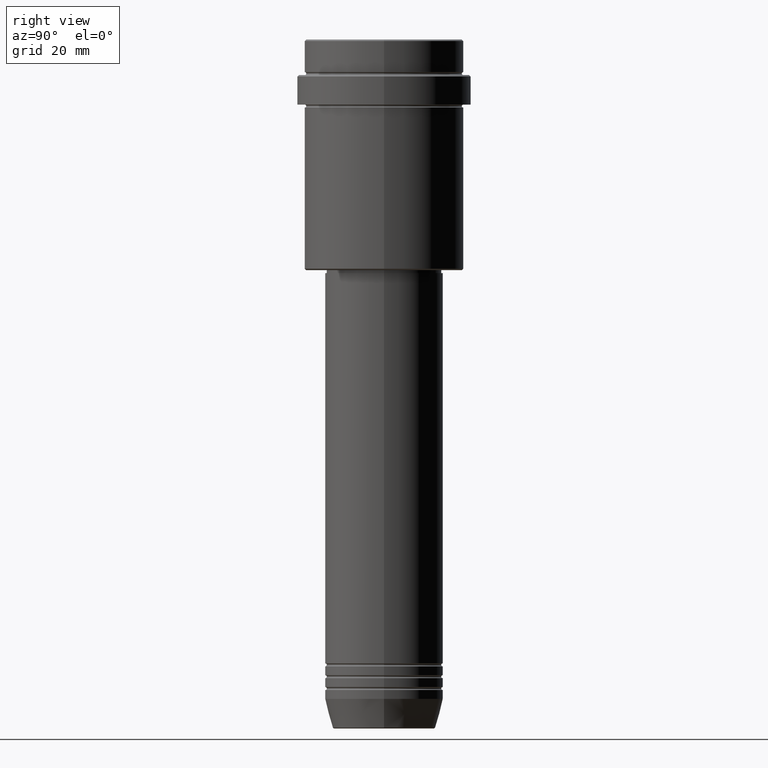
[diagram: clean part render]
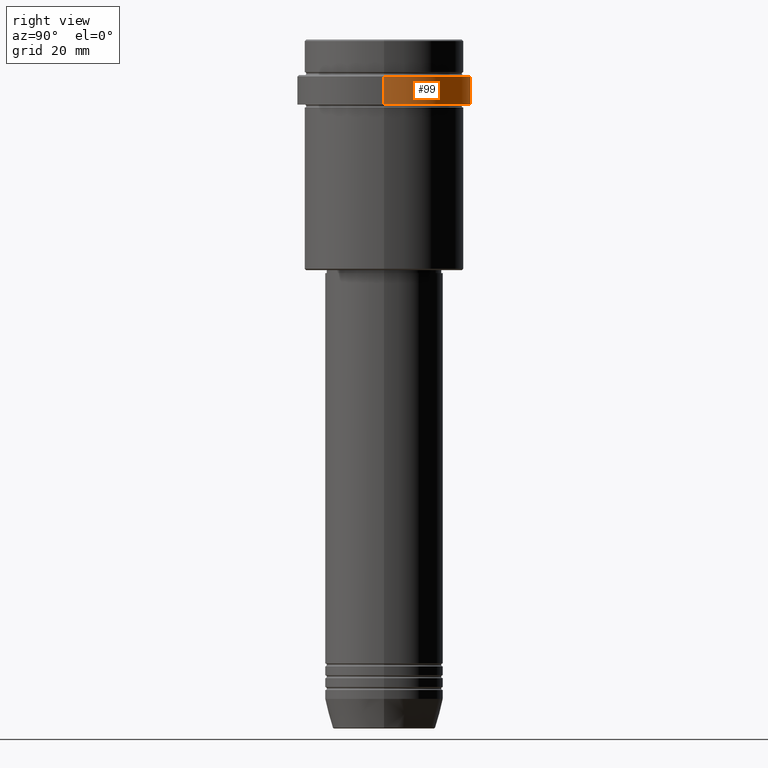
[diagram: same view with one face highlighted and labeled with its STEP entity id]
A machine part, right view. The second image highlights one B-rep face of the part: STEP entity #99.
In plain terms, the highlighted cylindrical surface (partial cylindrical patch) has radius 29.5 mm, axis along (-0, -0, 1).
Its self-contained STEP definition (entity closure, byte-faithful):
#8 = AXIS2_PLACEMENT_3D ( 'NONE', #640, #1086, #1385 ) ;
#11 = DIRECTION ( 'NONE',  ( 0.000000000000000000, 0.000000000000000000, -1.000000000000000000 ) ) ;
#80 = ORIENTED_EDGE ( 'NONE', *, *, #1257, .T. ) ;
#84 = EDGE_LOOP ( 'NONE', ( #80, #178, #745, #593 ) ) ;
#99 = ADVANCED_FACE ( 'NONE', ( #904 ), #355, .T. ) ;
#114 = EDGE_CURVE ( 'NONE', #450, #142, #512, .T. ) ;
#142 = VERTEX_POINT ( 'NONE', #704 ) ;
#178 = ORIENTED_EDGE ( 'NONE', *, *, #114, .T. ) ;
#187 = AXIS2_PLACEMENT_3D ( 'NONE', #249, #468, #1252 ) ;
#190 = DIRECTION ( 'NONE',  ( -0.000000000000000000, -0.000000000000000000, 1.000000000000000000 ) ) ;
#249 = CARTESIAN_POINT ( 'NONE',  ( 0.000000000000000000, 0.000000000000000000, 0.000000000000000000 ) ) ;
#256 = CIRCLE ( 'NONE', #947, 29.50000000000000000 ) ;
#297 = CARTESIAN_POINT ( 'NONE',  ( 29.50000000000000000, 0.000000000000000000, 0.000000000000000000 ) ) ;
#326 = VERTEX_POINT ( 'NONE', #547 ) ;
#330 = VECTOR ( 'NONE', #190, 1000.000000000000000 ) ;
#355 = CYLINDRICAL_SURFACE ( 'NONE', #187, 29.50000000000000000 ) ;
#404 = DIRECTION ( 'NONE',  ( -0.000000000000000000, -0.000000000000000000, 1.000000000000000000 ) ) ;
#450 = VERTEX_POINT ( 'NONE', #472 ) ;
#468 = DIRECTION ( 'NONE',  ( -0.000000000000000000, -0.000000000000000000, 1.000000000000000000 ) ) ;
#472 = CARTESIAN_POINT ( 'NONE',  ( -29.49999999999999645, 3.612708057484690815E-15, -22.00000000000000711 ) ) ;
#512 = LINE ( 'NONE', #1387, #1029 ) ;
#547 = CARTESIAN_POINT ( 'NONE',  ( 29.49999999999999645, 0.000000000000000000, -22.00000000000000711 ) ) ;
#593 = ORIENTED_EDGE ( 'NONE', *, *, #1288, .F. ) ;
#624 = CIRCLE ( 'NONE', #8, 29.49999999999999645 ) ;
#640 = CARTESIAN_POINT ( 'NONE',  ( 0.000000000000000000, 0.000000000000000000, -22.00000000000000711 ) ) ;
#704 = CARTESIAN_POINT ( 'NONE',  ( -29.50000000000000000, 3.612708057484691604E-15, -12.49999999999994849 ) ) ;
#745 = ORIENTED_EDGE ( 'NONE', *, *, #971, .T. ) ;
#767 = DIRECTION ( 'NONE',  ( 1.000000000000000000, 0.000000000000000000, 0.000000000000000000 ) ) ;
#904 = FACE_OUTER_BOUND ( 'NONE', #84, .T. ) ;
#946 = VERTEX_POINT ( 'NONE', #1341 ) ;
#947 = AXIS2_PLACEMENT_3D ( 'NONE', #987, #11, #767 ) ;
#971 = EDGE_CURVE ( 'NONE', #142, #946, #256, .T. ) ;
#987 = CARTESIAN_POINT ( 'NONE',  ( 0.000000000000000000, 0.000000000000000000, -12.49999999999994849 ) ) ;
#1029 = VECTOR ( 'NONE', #404, 1000.000000000000000 ) ;
#1086 = DIRECTION ( 'NONE',  ( -0.000000000000000000, -0.000000000000000000, 1.000000000000000000 ) ) ;
#1197 = LINE ( 'NONE', #297, #330 ) ;
#1252 = DIRECTION ( 'NONE',  ( 1.000000000000000000, 0.000000000000000000, 0.000000000000000000 ) ) ;
#1257 = EDGE_CURVE ( 'NONE', #326, #450, #624, .T. ) ;
#1288 = EDGE_CURVE ( 'NONE', #326, #946, #1197, .T. ) ;
#1341 = CARTESIAN_POINT ( 'NONE',  ( 29.50000000000000000, 0.000000000000000000, -12.49999999999994849 ) ) ;
#1385 = DIRECTION ( 'NONE',  ( 1.000000000000000000, 0.000000000000000000, 0.000000000000000000 ) ) ;
#1387 = CARTESIAN_POINT ( 'NONE',  ( -29.50000000000000000, 3.612708057484691604E-15, 0.000000000000000000 ) ) ;